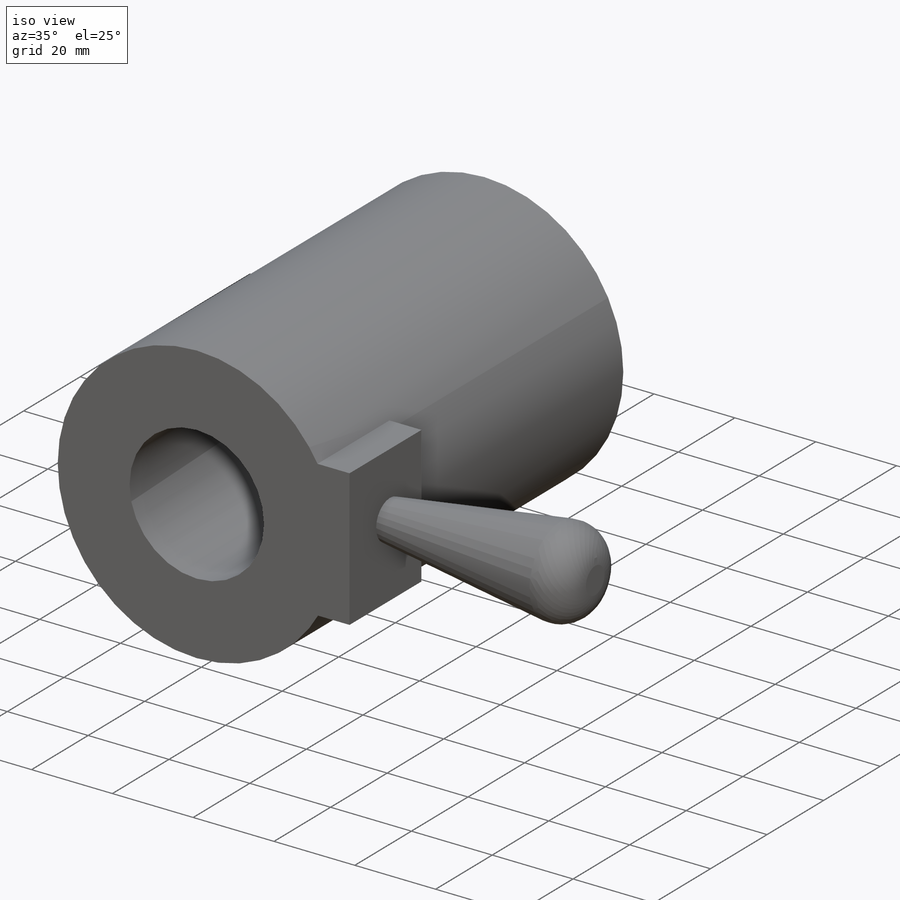
[diagram: iso view]
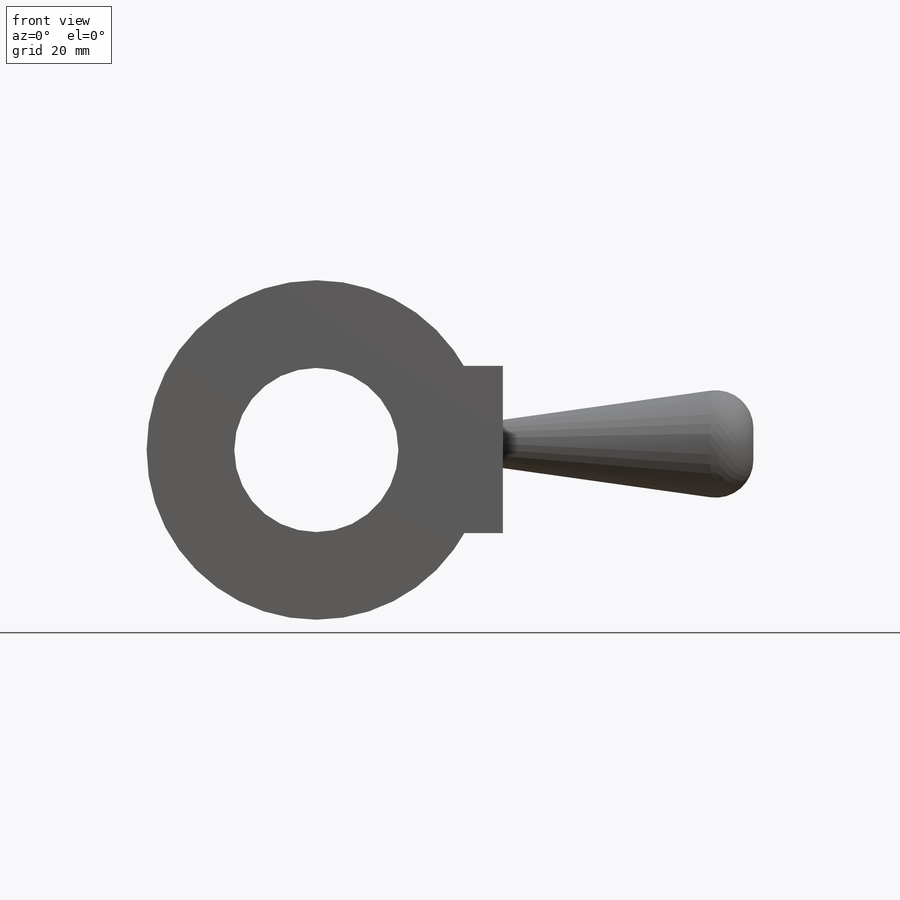
[diagram: front view]
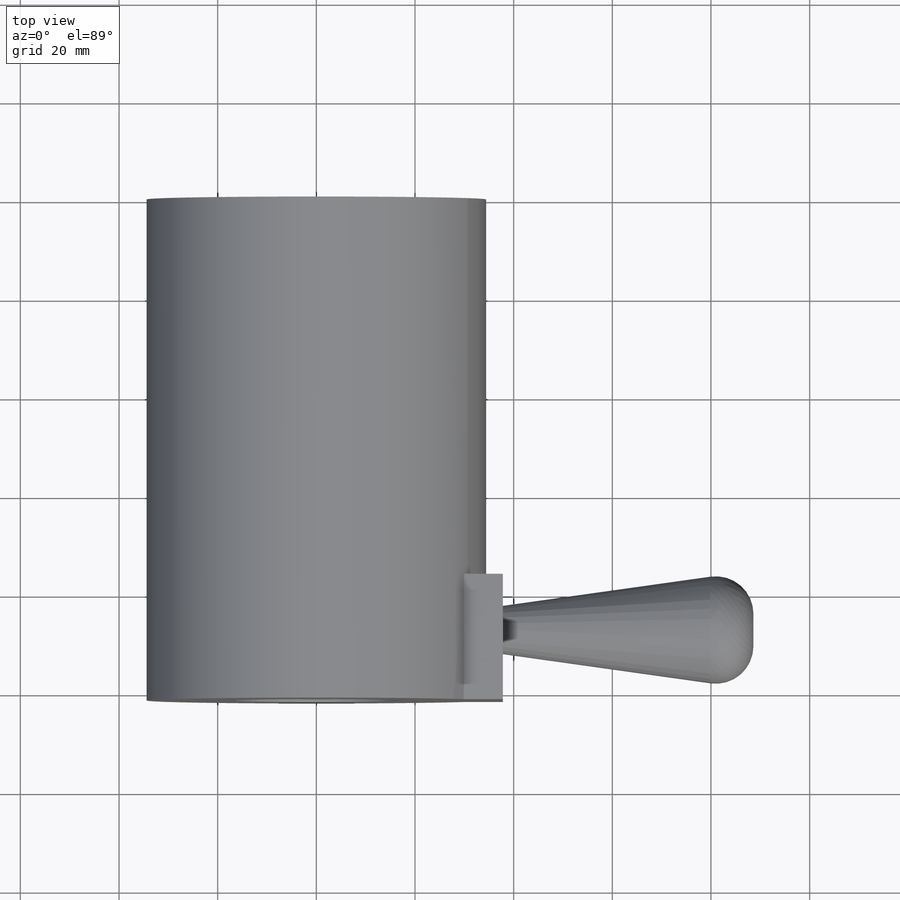
[diagram: top view]
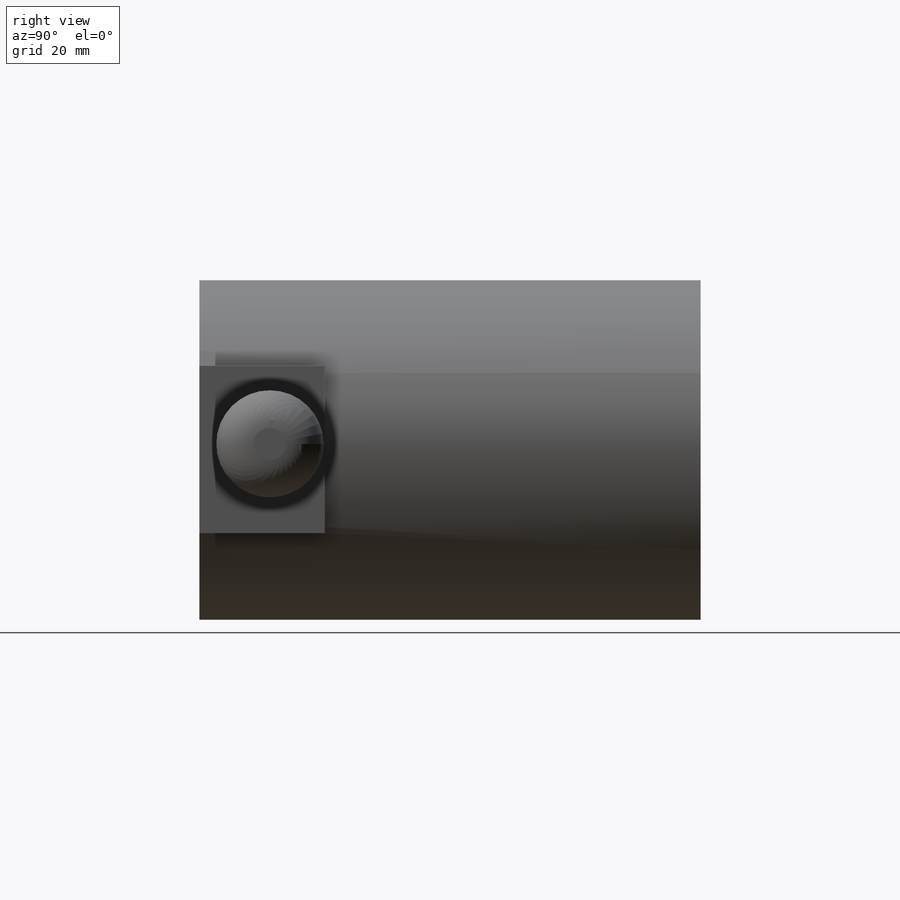
[diagram: right view]
SOLIDWORKS PART (.sldprt)
format: sldprt  version: not decoded by parser v0  size: 157,696 bytes
history: native  units: mm
features: sketch x3, extrude x3, material x1, fillet x1 (+13 scaffold rows collapsed)
feature tree (21):
  scaffold x13  (default folders/planes/origin — collapsed)
  material  "Material <not specified>"
  sketch  "Sketch2"  dims[D1=33.274mm]
  extrude  "Boss-Extrude1"  Depth=101.6mm
  sketch  "Sketch3"
  extrude  "Boss-Extrude2"  Depth=25.4mm
  sketch  "Sketch4"
  extrude  "Boss-Extrude3"  Depth=50.8mm
  fillet  "Fillet1"  Radius=7.62mm
decode coverage: 5 of 7 modeling features carry decoded parameters
note: suppression state not decoded; provenance and decode notes live in map.json
